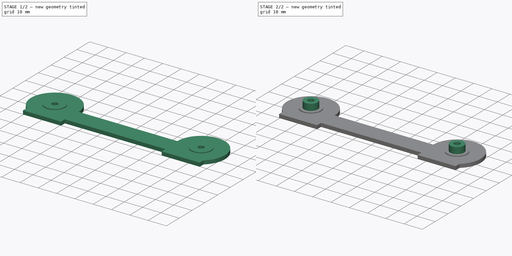
[diagram: build sequence overview — one tinted view per stage of 2, left to right]
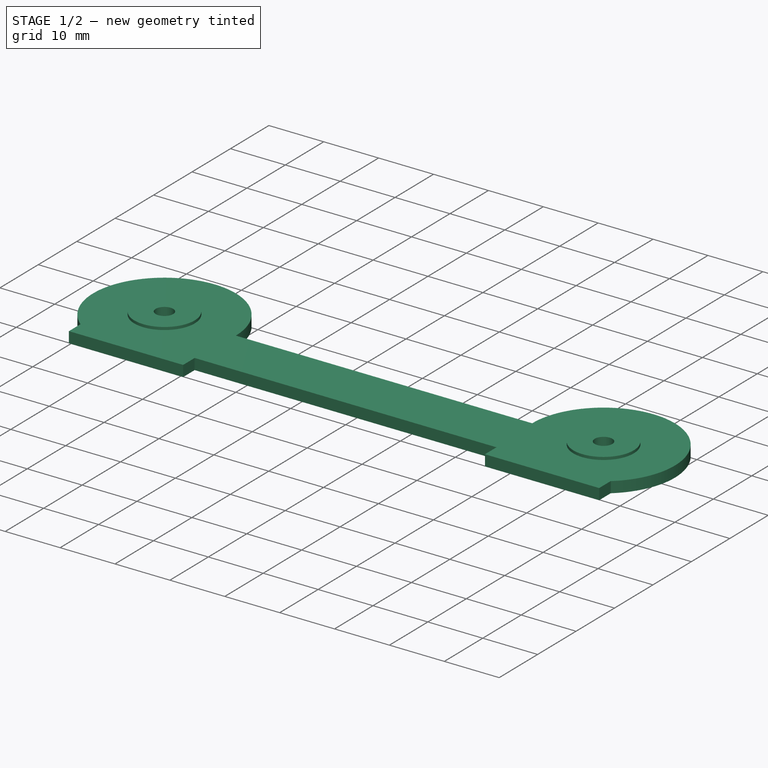
[diagram: stage 1 of 2 — iso view after this stage's code; geometry added in this stage tinted green]
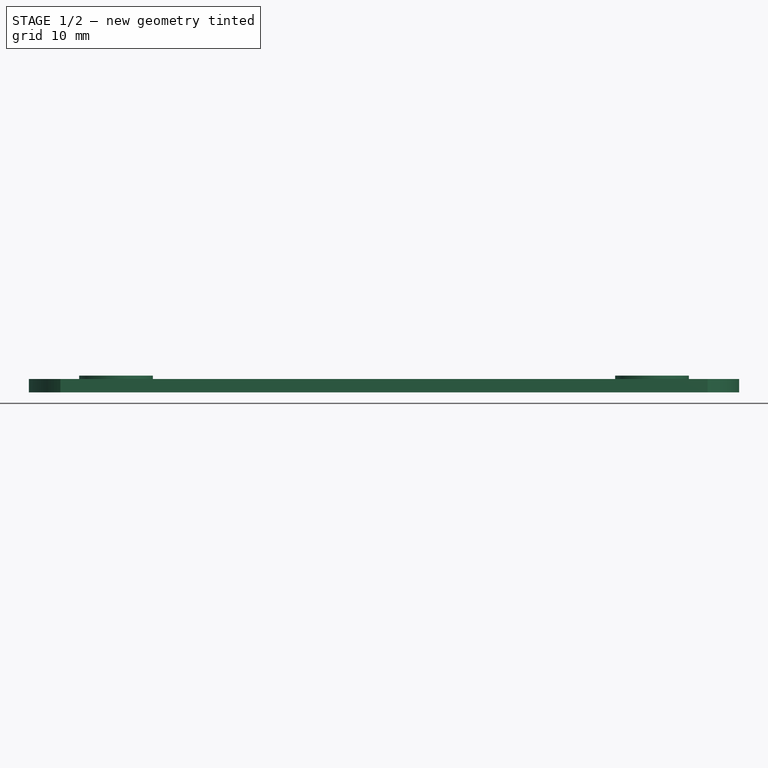
[diagram: stage 1 of 2 — front view after this stage's code; geometry added in this stage tinted green]
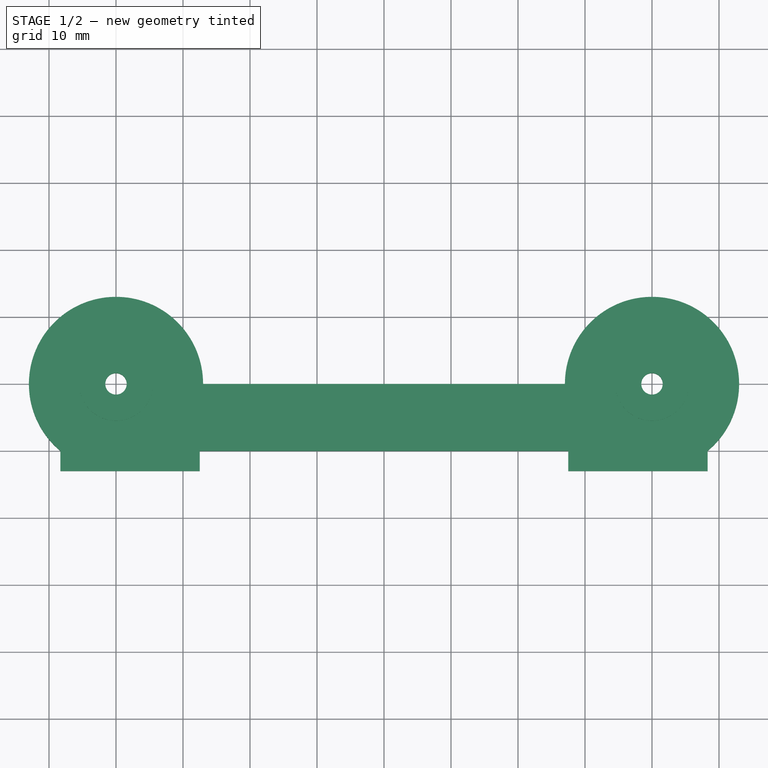
[diagram: stage 1 of 2 — top view after this stage's code; geometry added in this stage tinted green]
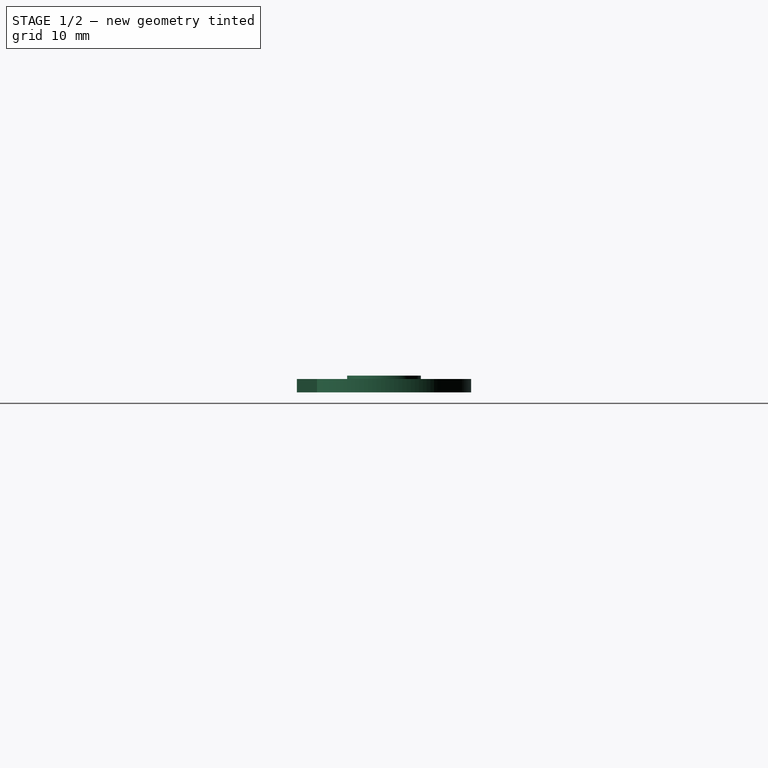
[diagram: stage 1 of 2 — right view after this stage's code; geometry added in this stage tinted green]
FCSTD DOCUMENT  (FreeCAD 0.16R6707 (Git))
Label: soporteFilamento
License: CreativeCommons Attribution-ShareAlike
LicenseURL: http://creativecommons.org/licenses/by-sa/4.0/
objects: Sketcher::SketchObject×3, PartDesign::Pad×3
note: 9 computed .brp shape members not serialized (recipe doc carries the construction recipe); baked Part::Feature solids carry a one-line shape summary decoded from their .brp

FEATURE [Sketcher::SketchObject] Sketch
  sketch-geometry (12):
    g0: Circle CenterX=-40 CenterY=0 CenterZ=0 NormalX=0 NormalY=0 NormalZ=1 Radius=1.6
    g1: Circle CenterX=40 CenterY=0 CenterZ=0 NormalX=0 NormalY=0 NormalZ=1 Radius=1.6
    g2: ArcOfCircle CenterX=-40 CenterY=0 CenterZ=0 NormalX=0 NormalY=0 NormalZ=1 Radius=13 StartAngle=0 EndAngle=4.01923
    g3: LineSegment StartX=-27 StartY=0 StartZ=0 EndX=27 EndY=0 EndZ=0
    g4: ArcOfCircle CenterX=40 CenterY=0 CenterZ=0 NormalX=0 NormalY=0 NormalZ=1 Radius=13 StartAngle=5.40555 EndAngle=9.42478
    g5: LineSegment StartX=-27.5 StartY=-10 StartZ=0 EndX=-27.5 EndY=-13 EndZ=0
    g6: LineSegment StartX=-27.5 StartY=-13 StartZ=0 EndX=-48.3066 EndY=-13 EndZ=0
    g7: LineSegment StartX=-48.3066 StartY=-13 StartZ=0 EndX=-48.3066 EndY=-10 EndZ=0
    g8: LineSegment StartX=27.5 StartY=-10 StartZ=0 EndX=27.5 EndY=-13 EndZ=0
    g9: LineSegment StartX=27.5 StartY=-13 StartZ=0 EndX=48.3066 EndY=-13 EndZ=0
    g10: LineSegment StartX=-27.5 StartY=-10 StartZ=0 EndX=27.5 EndY=-10 EndZ=0
    g11: LineSegment StartX=48.3066 StartY=-13 StartZ=0 EndX=48.3066 EndY=-10 EndZ=0
  constraints (34):
    c: PointOnObject(g0,g-1)
    c: Symmetric(g1,g0,g-1)
    c: Equal(g0,g1)
    c: Radius(g1) = 1.6
    c: DistanceX(g0,g1) = 80
    c: Coincident(g2,g0)
    c: Radius(g2) = 13
    c: PointOnObject(g3,g-1)
    c: Horizontal(g3)
    c: Coincident(g3,g2)
    c: Coincident(g4,g1)
    c: Coincident(g4,g3)
    c: Radius(g4) = 13
    c: Coincident(g5,g6)
    c: Coincident(g6,g7)
    c: Horizontal(g6)
    c: Vertical(g5)
    c: Vertical(g7)
    c: Coincident(g8,g9)
    c: Horizontal(g9)
    c: Vertical(g8)
    c: Equal(g5,g7)
    c: Coincident(g7,g2)
    c: Coincident(g10,g5)
    c: Coincident(g10,g8)
    c: Horizontal(g10)
    c: Symmetric(g5,g8,g-2)
    c: DistanceX(g10) = 55
    c: DistanceY(g5,g5) = 3
    c: Coincident(g11,g9)
    c: Coincident(g11,g4)
    c: Vertical(g11)
    c: Symmetric(g2,g4,g-2)
    c: DistanceY(g6,g0) = 13
FEATURE [PartDesign::Pad] Pad
  Length = 2
  Length2 = 100
  Sketch = -> Sketch
  Type = 0
FEATURE [Sketcher::SketchObject] Sketch001
  ExternalGeometry = -> [Pad]
  Placement = pos=(0,0,2) rot=(0,0,1;0rad)
  Support = -> Pad [Face14]
  sketch-geometry (4):
    g0: Circle CenterX=-40 CenterY=0 CenterZ=0 NormalX=0 NormalY=0 NormalZ=1 Radius=5.5
    g1: Circle CenterX=40 CenterY=0 CenterZ=0 NormalX=0 NormalY=0 NormalZ=1 Radius=5.5
    g2: Circle CenterX=-40 CenterY=0 CenterZ=0 NormalX=0 NormalY=0 NormalZ=1 Radius=1.6
    g3: Circle CenterX=40 CenterY=0 CenterZ=0 NormalX=0 NormalY=0 NormalZ=1 Radius=1.6
  constraints (8):
    c: Coincident(g1,g-3)
    c: Coincident(g2,g0)
    c: Radius(g2) = 1.6
    c: Radius(g0) = 5.5
    c: Coincident(g0,g-4)
    c: Equal(g0,g1)
    c: Coincident(g3,g1)
    c: Equal(g-4,g3)
FEATURE [PartDesign::Pad] Pad001
  Length = 0.5
  Length2 = 100
  Sketch = -> Sketch001
  Type = 0
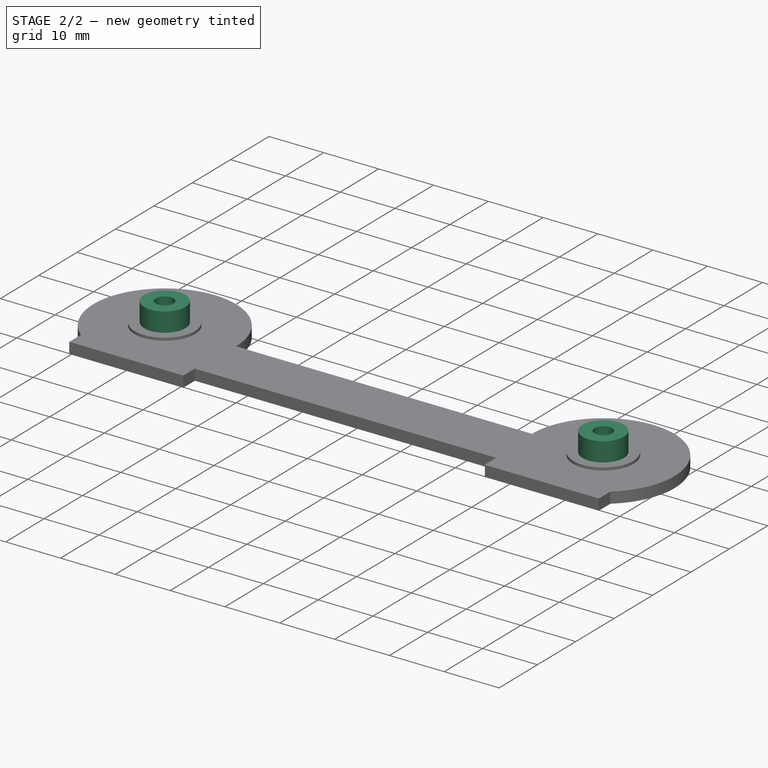
[diagram: stage 2 of 2 — iso view after this stage's code; geometry added in this stage tinted green]
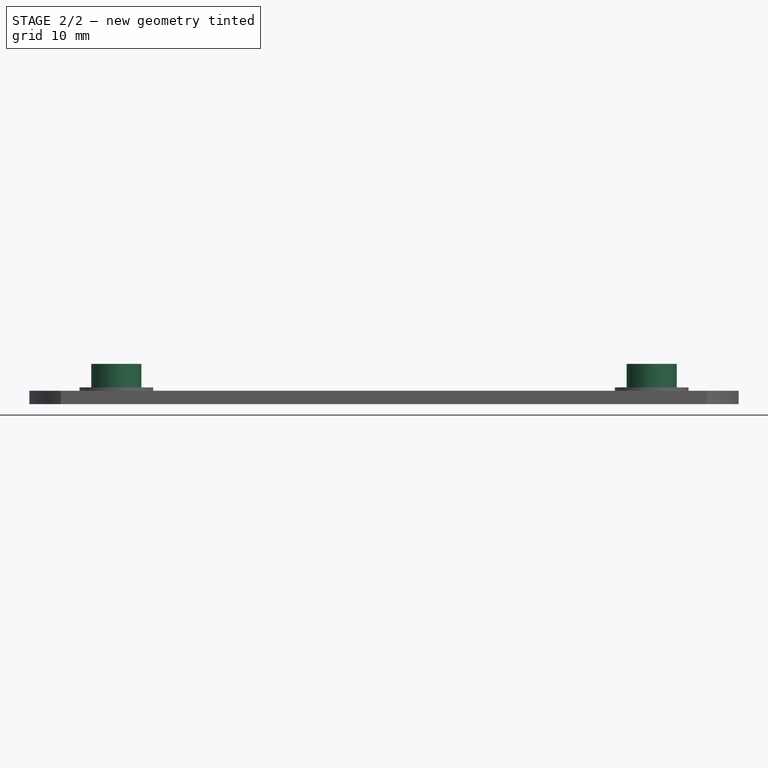
[diagram: stage 2 of 2 — front view after this stage's code; geometry added in this stage tinted green]
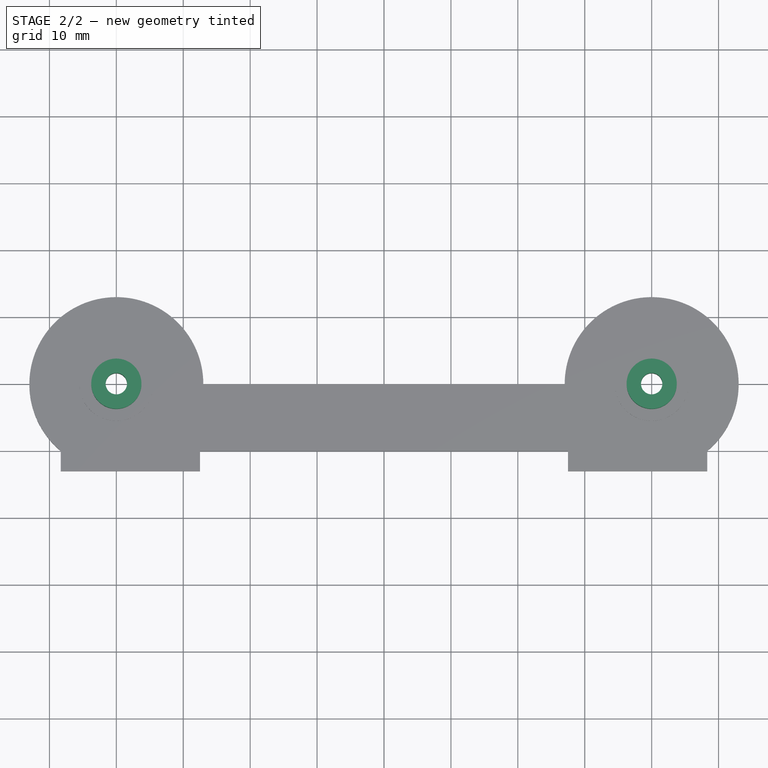
[diagram: stage 2 of 2 — top view after this stage's code; geometry added in this stage tinted green]
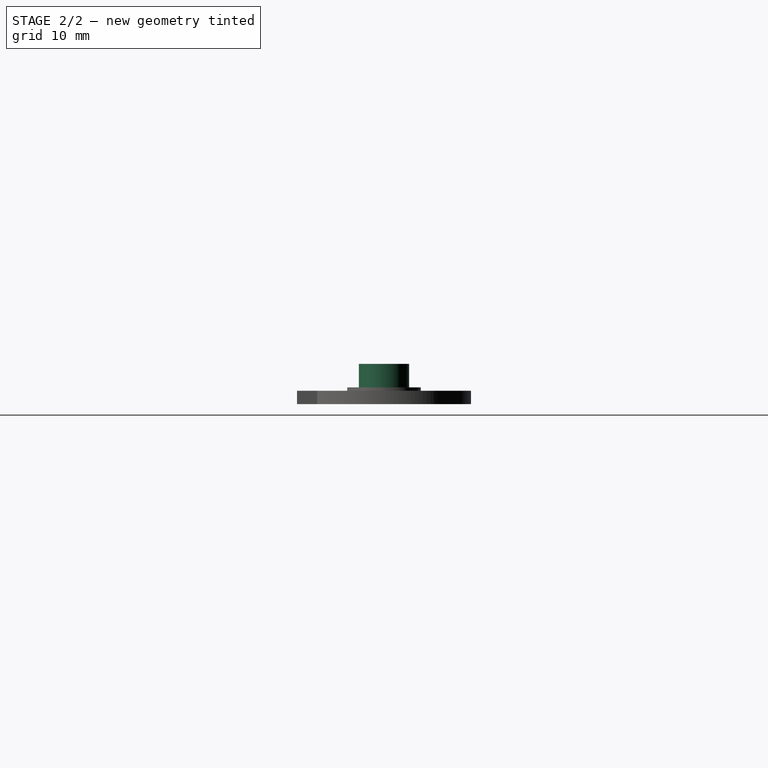
[diagram: stage 2 of 2 — right view after this stage's code; geometry added in this stage tinted green]
FEATURE [Sketcher::SketchObject] Sketch002
  ExternalGeometry = -> [Pad001]
  Placement = pos=(0,0,2.5) rot=(0,0,1;0rad)
  Support = -> Pad001 [Face15]
  sketch-geometry (4):
    g0: Circle CenterX=-40 CenterY=0 CenterZ=0 NormalX=0 NormalY=0 NormalZ=1 Radius=1.6
    g1: Circle CenterX=40 CenterY=0 CenterZ=0 NormalX=0 NormalY=0 NormalZ=1 Radius=1.6
    g2: Circle CenterX=-40 CenterY=0 CenterZ=0 NormalX=0 NormalY=0 NormalZ=1 Radius=3.75
    g3: Circle CenterX=40 CenterY=0 CenterZ=0 NormalX=0 NormalY=0 NormalZ=1 Radius=3.75
  constraints (8):
    c: Coincident(g0,g-3)
    c: Coincident(g1,g-4)
    c: Equal(g1,g0)
    c: Radius(g0) = 1.6
    c: Coincident(g2,g0)
    c: Coincident(g3,g1)
    c: Equal(g3,g2)
    c: Radius(g2) = 3.75
FEATURE [PartDesign::Pad] Pad002
  Length = 3.5
  Length2 = 100
  Sketch = -> Sketch002
  Type = 0
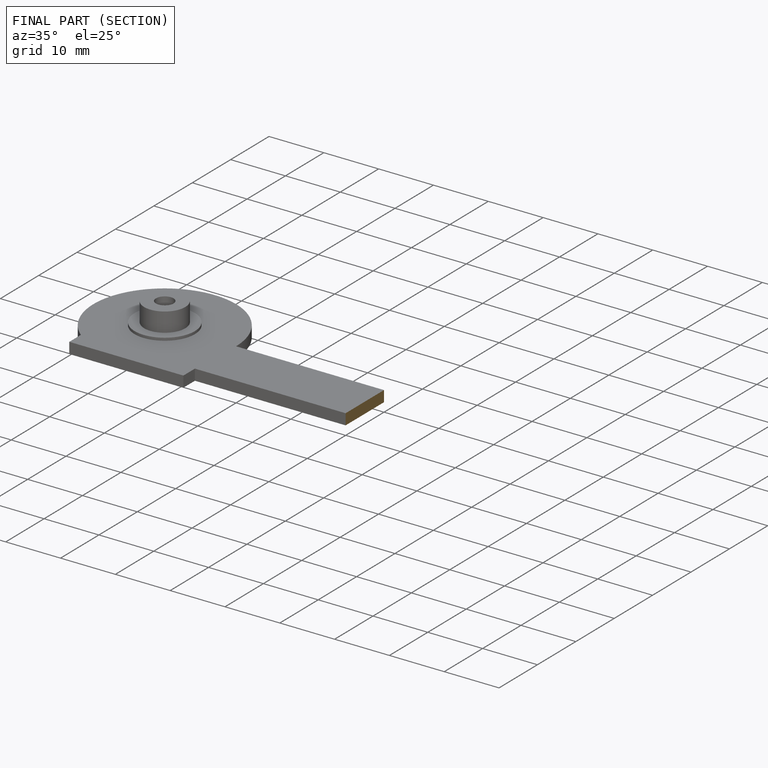
[diagram: finished part — half-section view (interior)]
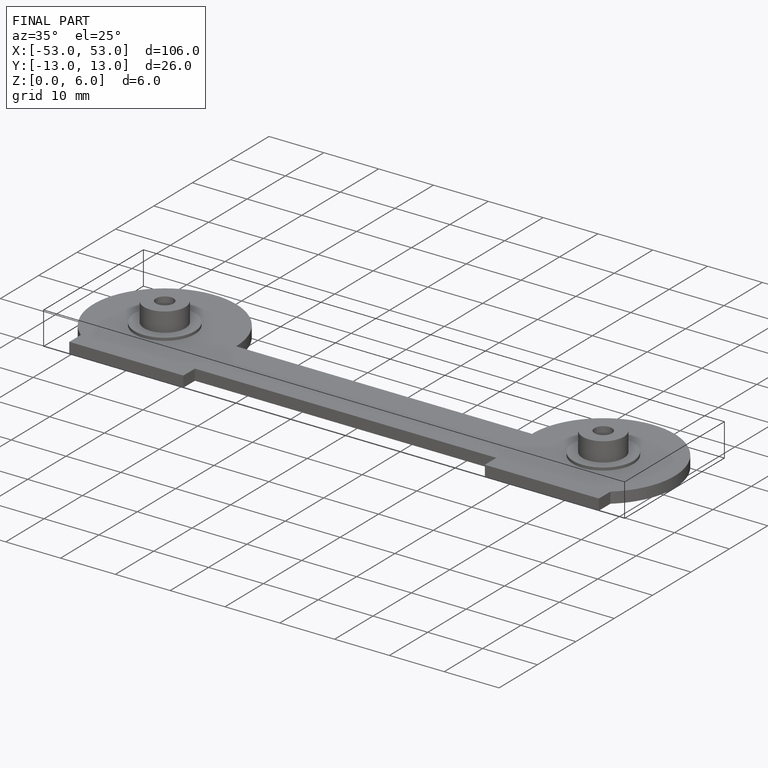
[diagram: finished part — iso view with bounding-box wireframe]
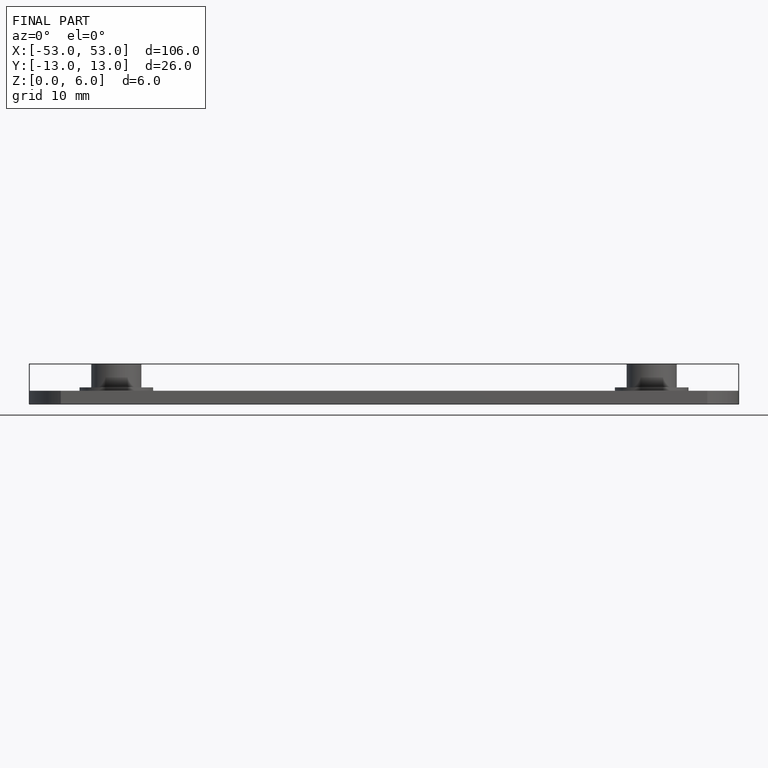
[diagram: finished part — front view with bounding-box wireframe]
